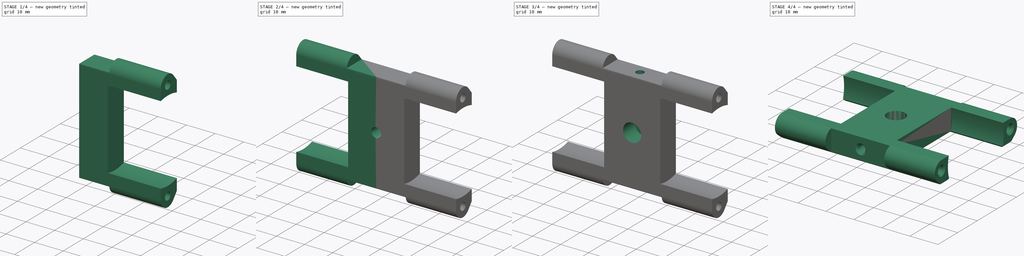
[diagram: build sequence overview — one tinted view per stage of 4, left to right]
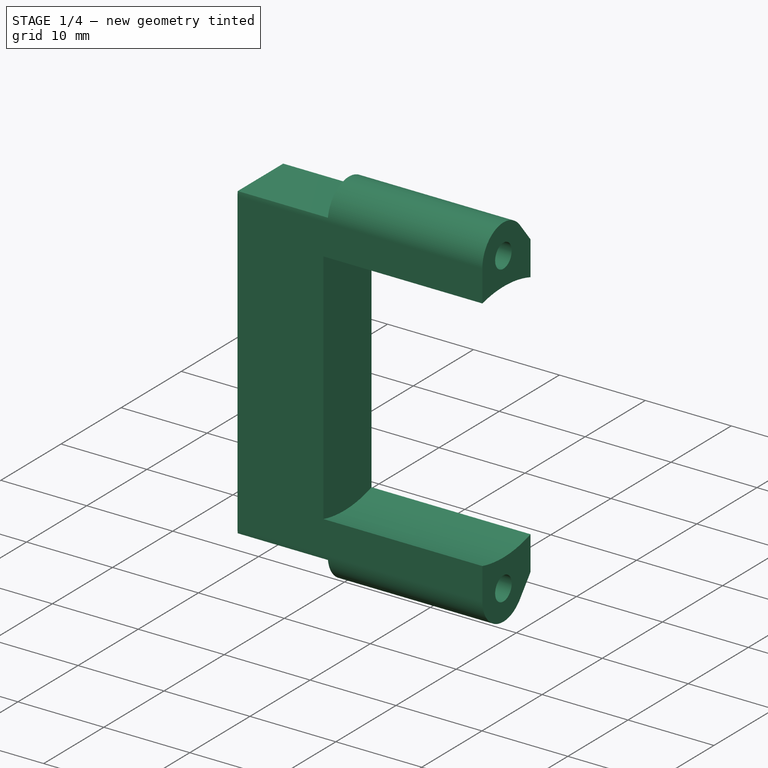
[diagram: stage 1 of 4 — iso view after this stage's code; geometry added in this stage tinted green]
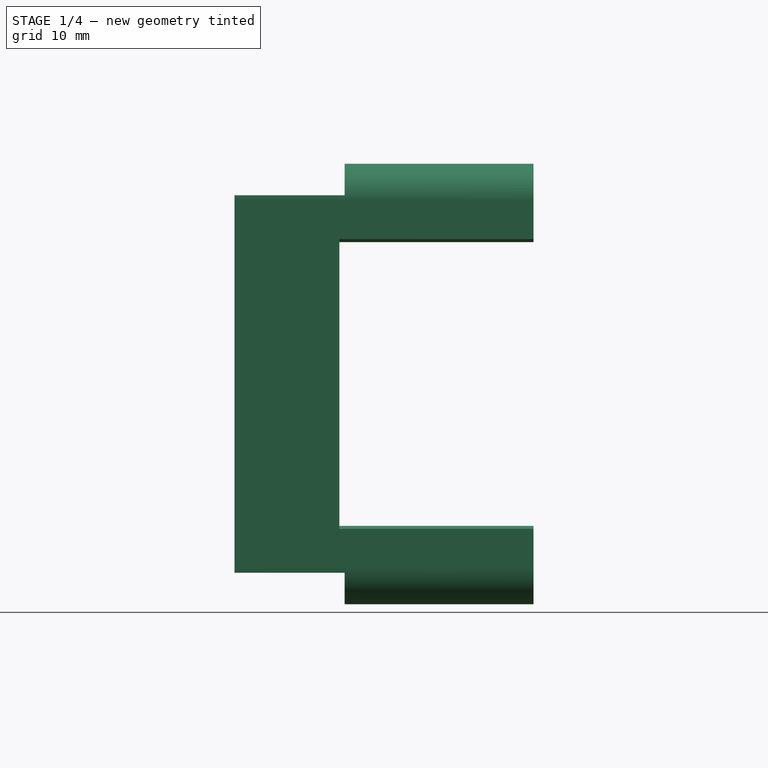
[diagram: stage 1 of 4 — front view after this stage's code; geometry added in this stage tinted green]
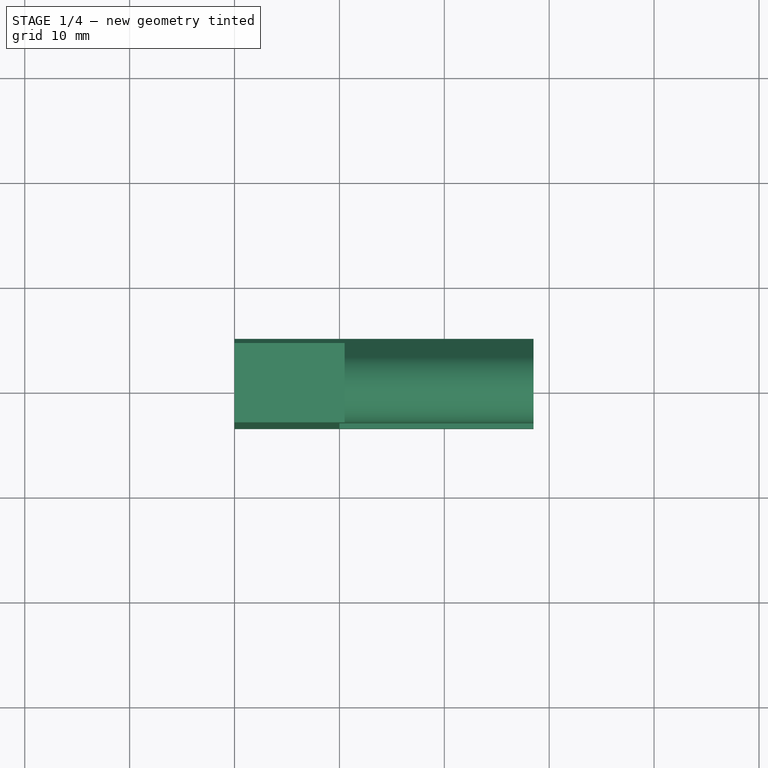
[diagram: stage 1 of 4 — top view after this stage's code; geometry added in this stage tinted green]
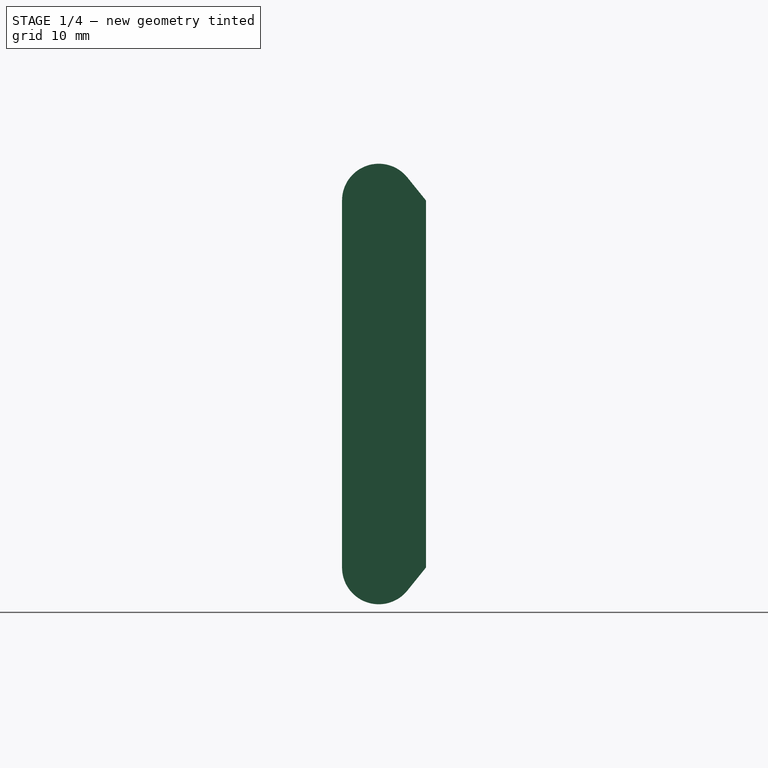
[diagram: stage 1 of 4 — right view after this stage's code; geometry added in this stage tinted green]
FCSTD DOCUMENT  (FreeCAD 0.14R3692 (Git))
Label: motor-bracket
License: The MIT License
LicenseURL: http://opensource.org/licenses/MIT
objects: Sketcher::SketchObject×8, PartDesign::Pocket×7, Part::FeaturePython×2, Part::Chamfer×2, Part::Feature×1, PartDesign::Pad×1, Part::Mirroring×1, Part::MultiFuse×1, App::DocumentObjectGroup×1
note: 31 computed .brp shape members not serialized (recipe doc carries the construction recipe); baked Part::Feature solids carry a one-line shape summary decoded from their .brp

FEATURE [Part::Feature] Part__Feature  label="stepper-motor"
  Placement = pos=(19.925,0,0) rot=(0.57735,0.57735,0.57735;2.0944rad)
  shape: bbox 28.55 x 44.13 x 42 mm, 425 faces (baked)
FEATURE [Sketcher::SketchObject] Sketch  label="bracket-sketch"
  Placement = pos=(0,0,0) rot=(0.57735,0.57735,0.57735;2.0944rad)
  sketch-geometry (6):
    g0: ArcOfCircle CenterX=0 CenterY=17.5 CenterZ=0 NormalX=0 NormalY=0 NormalZ=1 Radius=3.5 StartAngle=0.679674 EndAngle=3.14159
    g1: ArcOfCircle CenterX=0 CenterY=-17.5 CenterZ=0 NormalX=0 NormalY=0 NormalZ=1 Radius=3.5 StartAngle=3.14159 EndAngle=5.60352
    g2: LineSegment StartX=-3.5 StartY=17.5 StartZ=0 EndX=-3.5 EndY=-17.5 EndZ=0
    g3: LineSegment StartX=4.5 StartY=17.5 StartZ=0 EndX=4.5 EndY=-17.5 EndZ=0
    g4: LineSegment StartX=4.5 StartY=17.5 StartZ=0 EndX=2.72222 EndY=19.6999 EndZ=0
    g5: LineSegment StartX=2.72223 StartY=-19.6999 StartZ=0 EndX=4.5 EndY=-17.5 EndZ=0
  constraints (19):
    c: Tangent(g0,g2)
    c: Tangent(g1,g2)
    c: Coincident(g0,g2)
    c: Coincident(g2,g1)
    c: Vertical(g2)
    c: Radius(g1) = 3.5
    c: PointOnObject(g1,g-2)
    c: DistanceY(g0,g1) = -35
    c: Symmetric(g1,g0,g-1)
    c: Vertical(g3)
    c: Coincident(g3,g4)
    c: Coincident(g0,g4)
    c: Tangent(g0,g4)
    c: DistanceX(g3,g1) = -8
    c: DistanceY(g3) = -35
    c: Symmetric(g3,g3,g-1)
    c: Coincident(g5,g1)
    c: Coincident(g5,g3)
    c: Tangent(g1,g5)
FEATURE [PartDesign::Pad] Pad  label="bracket-pad"
  Length = 28.5
  Length2 = 100
  Placement = pos=(0,0,0) rot=(0.57735,0.57735,0.57735;2.0944rad)
  Sketch = -> Sketch
  Type = 0
FEATURE [Sketcher::SketchObject] Sketch001  label="motor-sketch"
  Placement = pos=(28.5,0,0) rot=(0.57735,0.57735,0.57735;2.0944rad)
  Support = -> Pad [Face8]
  sketch-geometry (1):
    g0: Circle CenterX=0 CenterY=0 CenterZ=0 NormalX=0 NormalY=0 NormalZ=1 Radius=14.25
  constraints (2):
    c: Coincident(g0,g-1)
    c: Radius(g0) = 14.25
FEATURE [PartDesign::Pocket] Pocket  label="motor-pocket"
  Length = 18.5
  Placement = pos=(0,0,0) rot=(0.57735,0.57735,0.57735;2.0944rad)
  Sketch = -> Sketch001
  Type = 0
FEATURE [Sketcher::SketchObject] Sketch002  label="motor-screw-holes-sketch"
  Placement = pos=(28.5,0,0) rot=(0.57735,0.57735,0.57735;2.0944rad)
  Support = -> Pocket [Face9]
  sketch-geometry (2):
    g0: Circle CenterX=0 CenterY=-17.5 CenterZ=0 NormalX=0 NormalY=0 NormalZ=1 Radius=1.375
    g1: Circle CenterX=0 CenterY=17.5 CenterZ=0 NormalX=0 NormalY=0 NormalZ=1 Radius=1.375
  constraints (6):
    c: PointOnObject(g0,g-2)
    c: DistanceY(g-1,g0) = -17.5
    c: Radius(g0) = 1.375
    c: PointOnObject(g1,g-2)
    c: DistanceY(g-1,g1) = 17.5
    c: Radius(g1) = 1.375
FEATURE [PartDesign::Pocket] Pocket001  label="motor-screw-holes-pocket"
  Length = 12
  Placement = pos=(0,0,0) rot=(0.57735,0.57735,0.57735;2.0944rad)
  Sketch = -> Sketch002
  Type = 0
FEATURE [Sketcher::SketchObject] Sketch003  label="recess-sketch"
  Placement = pos=(0,-3.5,0) rot=(-0.57735,-0.57735,0.57735;4.18879rad)
  Support = -> Pocket001 [Face13]
  sketch-geometry (8):
    g0: LineSegment StartX=-22 StartY=10.5 StartZ=0 EndX=-18 EndY=10.5 EndZ=0
    g1: LineSegment StartX=-18 StartY=10.5 StartZ=0 EndX=-18 EndY=0 EndZ=0
    g2: LineSegment StartX=-18 StartY=0 StartZ=0 EndX=-22 EndY=0 EndZ=0
    g3: LineSegment StartX=-22 StartY=0 StartZ=0 EndX=-22 EndY=10.5 EndZ=0
    g4: LineSegment StartX=18 StartY=10.5 StartZ=0 EndX=22 EndY=10.5 EndZ=0
    g5: LineSegment StartX=22 StartY=10.5 StartZ=0 EndX=22 EndY=0 EndZ=0
    g6: LineSegment StartX=22 StartY=0 StartZ=0 EndX=18 EndY=0 EndZ=0
    g7: LineSegment StartX=18 StartY=0 StartZ=0 EndX=18 EndY=10.5 EndZ=0
  constraints (24):
    c: Coincident(g0,g1)
    c: Coincident(g1,g2)
    c: Coincident(g2,g3)
    c: Coincident(g3,g0)
    c: Horizontal(g0)
    c: Horizontal(g2)
    c: Vertical(g1)
    c: Vertical(g3)
    c: PointOnObject(g1,g-1)
    c: DistanceX(g-1,g1) = -18
    c: DistanceX(g2) = -4
    c: DistanceY(g1) = -10.5
    c: Coincident(g4,g5)
    c: Coincident(g5,g6)
    c: Coincident(g6,g7)
    c: Coincident(g7,g4)
    c: Horizontal(g4)
    c: Horizontal(g6)
    c: Vertical(g5)
    c: Vertical(g7)
    c: PointOnObject(g6,g-1)
    c: DistanceY(g7) = 10.5
    c: DistanceX(g6) = -4
    c: DistanceX(g-1,g6) = 18
FEATURE [PartDesign::Pocket] Pocket002  label="recess-pocket"
  Length = 8
  Placement = pos=(0,0,0) rot=(0.57735,0.57735,0.57735;2.0944rad)
  Sketch = -> Sketch003
  Type = 0
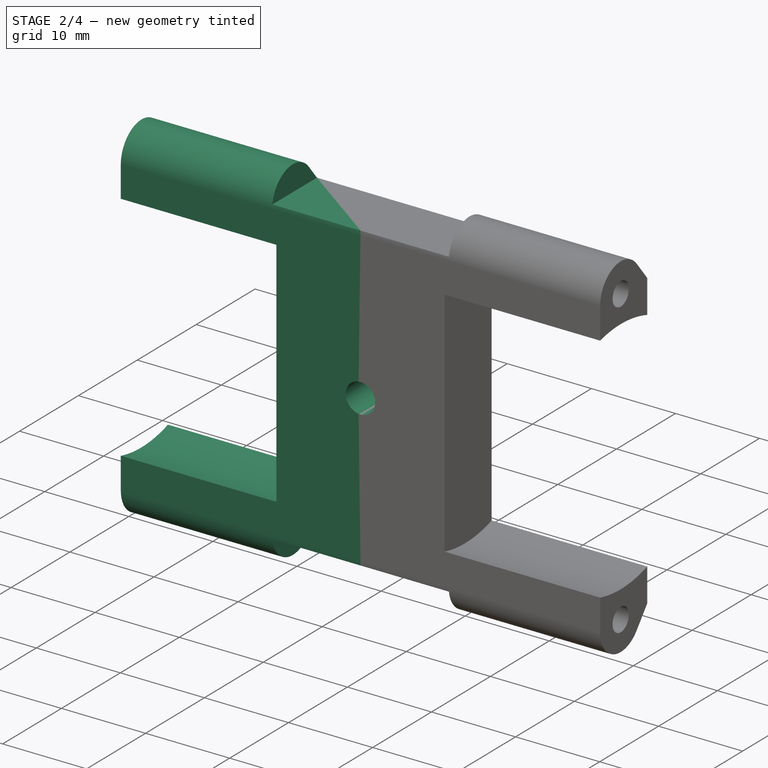
[diagram: stage 2 of 4 — iso view after this stage's code; geometry added in this stage tinted green]
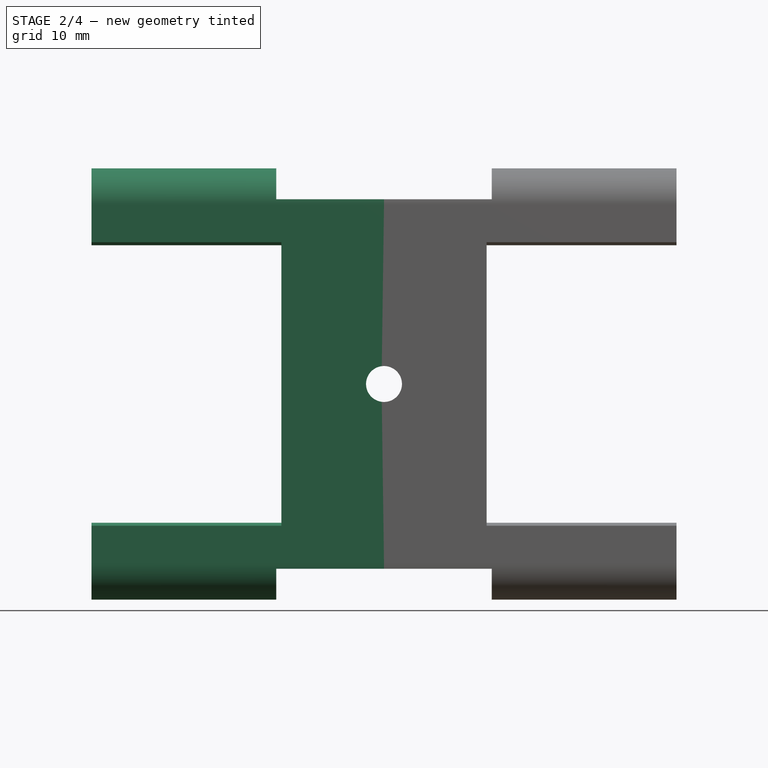
[diagram: stage 2 of 4 — front view after this stage's code; geometry added in this stage tinted green]
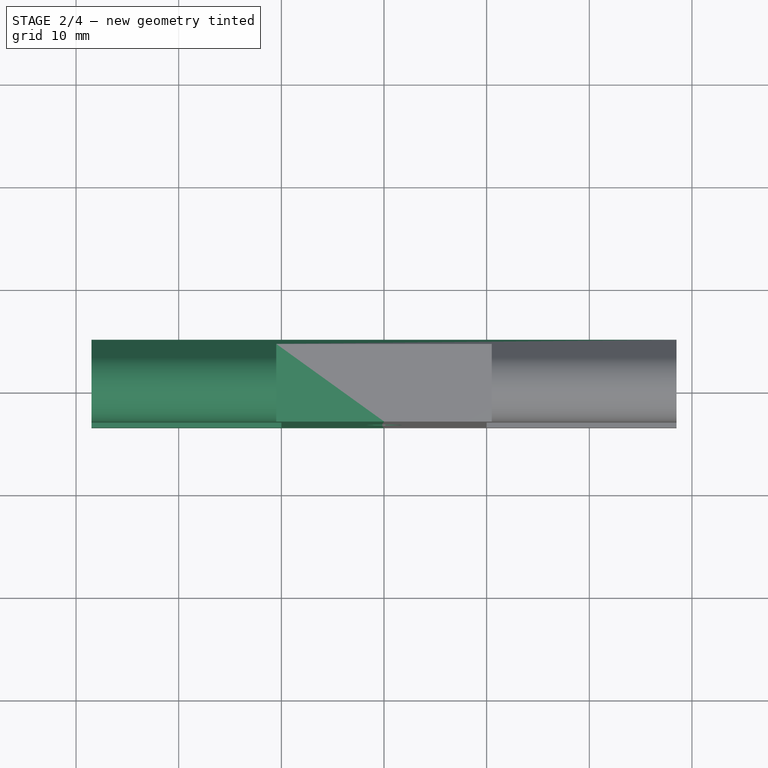
[diagram: stage 2 of 4 — top view after this stage's code; geometry added in this stage tinted green]
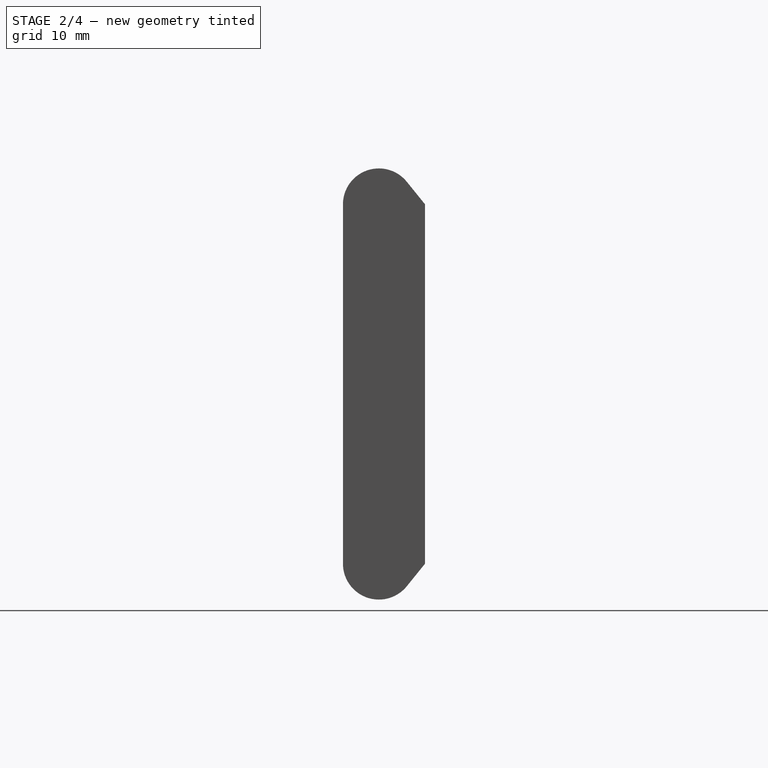
[diagram: stage 2 of 4 — right view after this stage's code; geometry added in this stage tinted green]
FEATURE [Part::Mirroring] Part__Mirroring  label="recess-pocket-mirror"
  Base = (0,0,0)
  Normal = (1,0,0)
  Source = -> Pocket002
FEATURE [Part::MultiFuse] Fusion  label="bracket-fusion"
  Shapes = -> [Part__Mirroring,Pocket002]
FEATURE [Sketcher::SketchObject] Sketch004  label="center-screw-hole-sketch"
  Placement = pos=(0,-3.5,0) rot=(1,0,0;1.5708rad)
  Support = -> Fusion [Face28]
  sketch-geometry (1):
    g0: Circle CenterX=0 CenterY=0 CenterZ=0 NormalX=0 NormalY=0 NormalZ=1 Radius=1.75
  constraints (2):
    c: Coincident(g0,g-1)
    c: Radius(g0) = 1.75
FEATURE [PartDesign::Pocket] Pocket003  label="center-screw-hole-pocket"
  Length = 8
  Sketch = -> Sketch004
  Type = 0
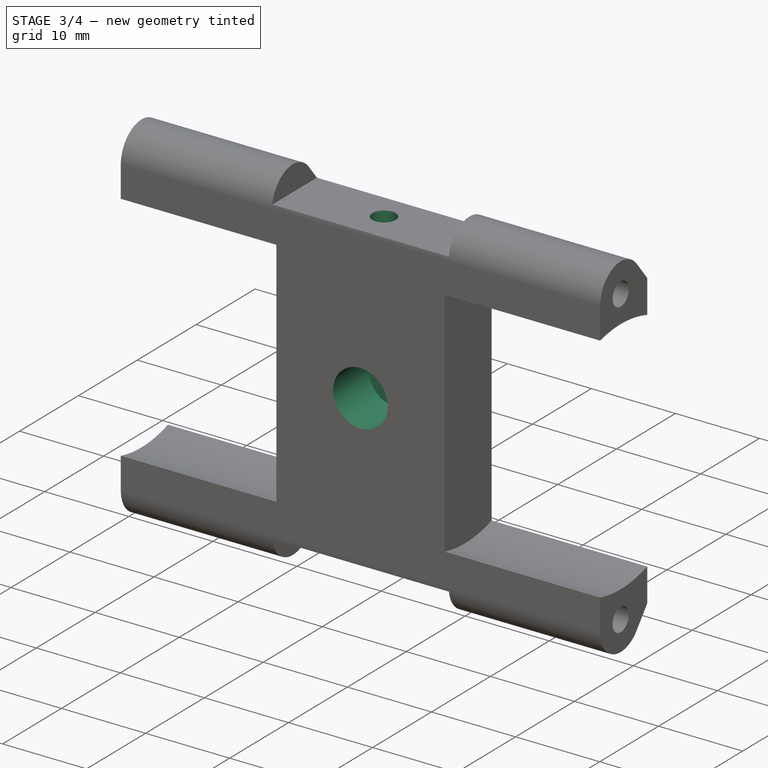
[diagram: stage 3 of 4 — iso view after this stage's code; geometry added in this stage tinted green]
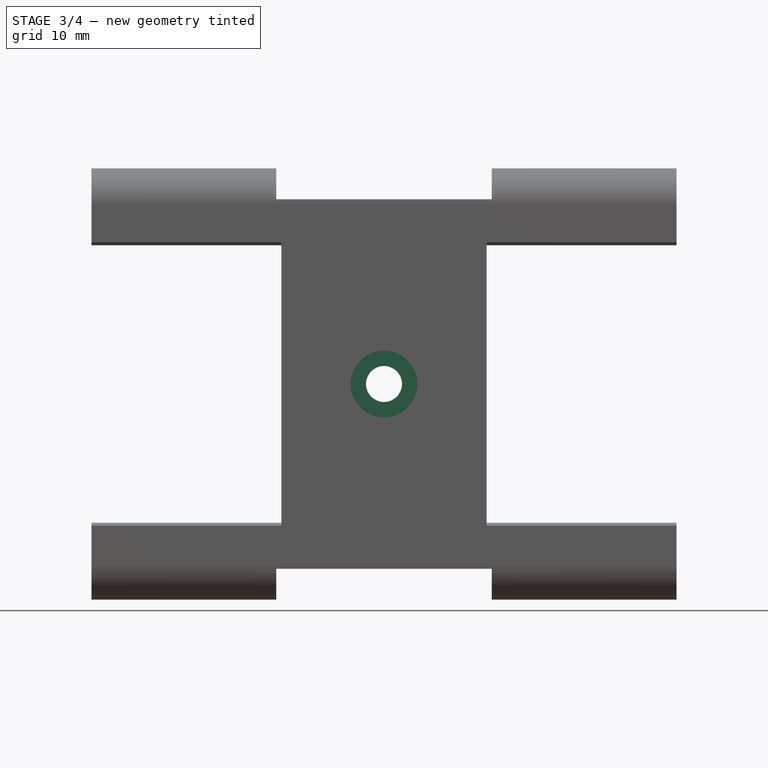
[diagram: stage 3 of 4 — front view after this stage's code; geometry added in this stage tinted green]
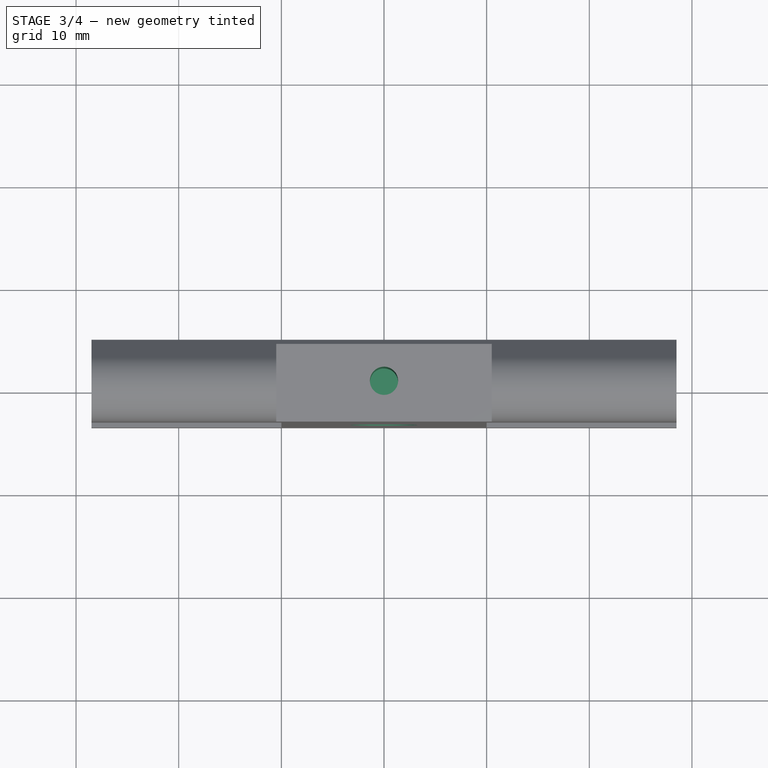
[diagram: stage 3 of 4 — top view after this stage's code; geometry added in this stage tinted green]
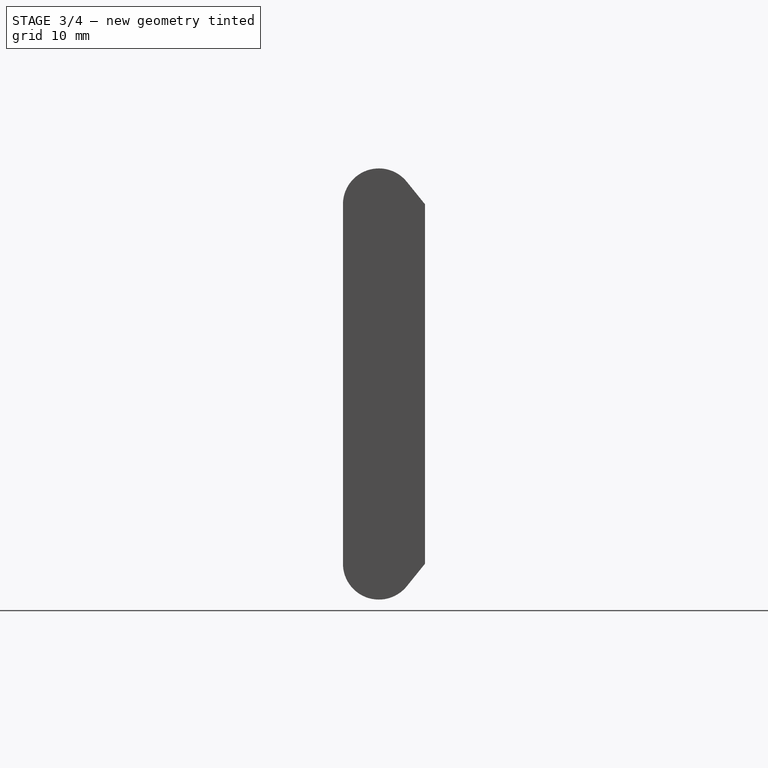
[diagram: stage 3 of 4 — right view after this stage's code; geometry added in this stage tinted green]
FEATURE [Sketcher::SketchObject] Sketch005  label="center-screw-head-hole-sketch"
  Placement = pos=(0,-3.5,0) rot=(1,0,0;1.5708rad)
  Support = -> Pocket003 [Face5]
  sketch-geometry (1):
    g0: Circle CenterX=0 CenterY=0 CenterZ=0 NormalX=0 NormalY=0 NormalZ=1 Radius=3.25
  constraints (2):
    c: Coincident(g0,g-1)
    c: Radius(g0) = 3.25
FEATURE [PartDesign::Pocket] Pocket004  label="center-screw-head-hole-pocket"
  Length = 6
  Sketch = -> Sketch005
  Type = 0
FEATURE [Sketcher::SketchObject] Sketch006  label="top-screw-hole-sketch"
  Placement = pos=(0,0,18) rot=(0,0,1;0rad)
  Support = -> Pocket004 [Face28]
  sketch-geometry (1):
    g0: Circle CenterX=0 CenterY=0.5 CenterZ=0 NormalX=0 NormalY=0 NormalZ=1 Radius=1.375
  constraints (3):
    c: PointOnObject(g0,g-2)
    c: DistanceY(g-1,g0) = 0.5
    c: Radius(g0) = 1.375
FEATURE [PartDesign::Pocket] Pocket005  label="top-screw-hole-pocket"
  Length = 10
  Sketch = -> Sketch006
  Type = 0
FEATURE [Sketcher::SketchObject] Sketch007  label="bottom-screw-hole-sketch"
  Placement = pos=(0,0,-18) rot=(1,0,0;3.14159rad)
  Support = -> Pocket005 [Face26]
  sketch-geometry (1):
    g0: Circle CenterX=0 CenterY=-0.5 CenterZ=0 NormalX=0 NormalY=0 NormalZ=1 Radius=1.375
  constraints (3):
    c: PointOnObject(g0,g-2)
    c: DistanceY(g-1,g0) = -0.5
    c: Radius(g0) = 1.375
FEATURE [PartDesign::Pocket] Pocket006  label="bottom-screw-hole-pocket"
  Length = 10
  Sketch = -> Sketch007
  Type = 0
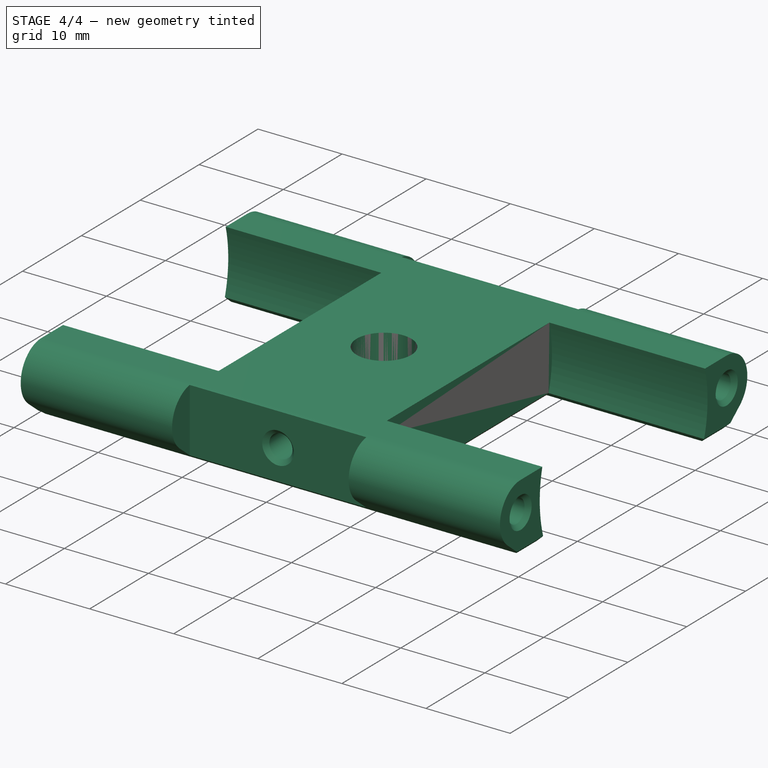
[diagram: stage 4 of 4 — iso view after this stage's code; geometry added in this stage tinted green]
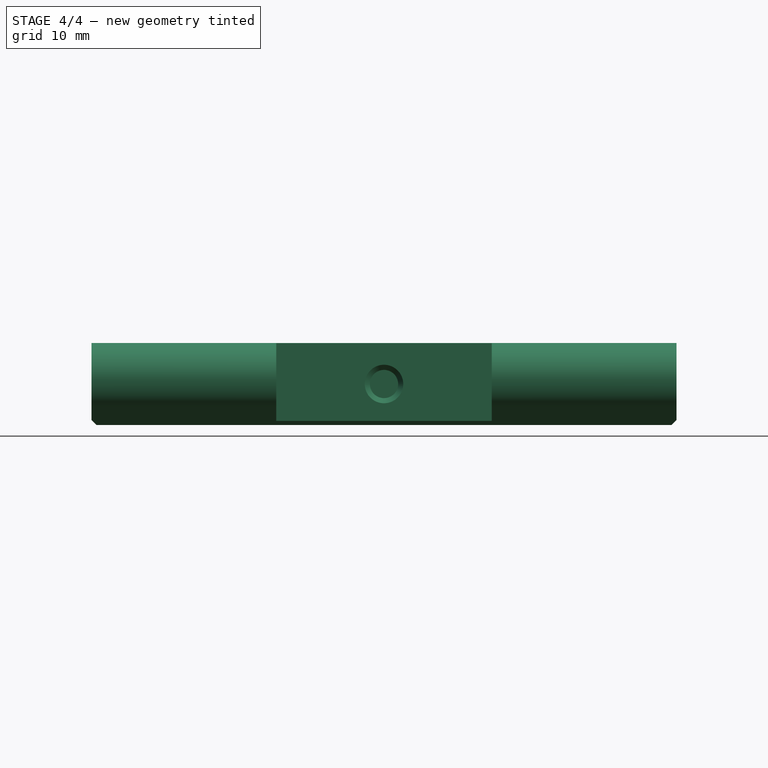
[diagram: stage 4 of 4 — front view after this stage's code; geometry added in this stage tinted green]
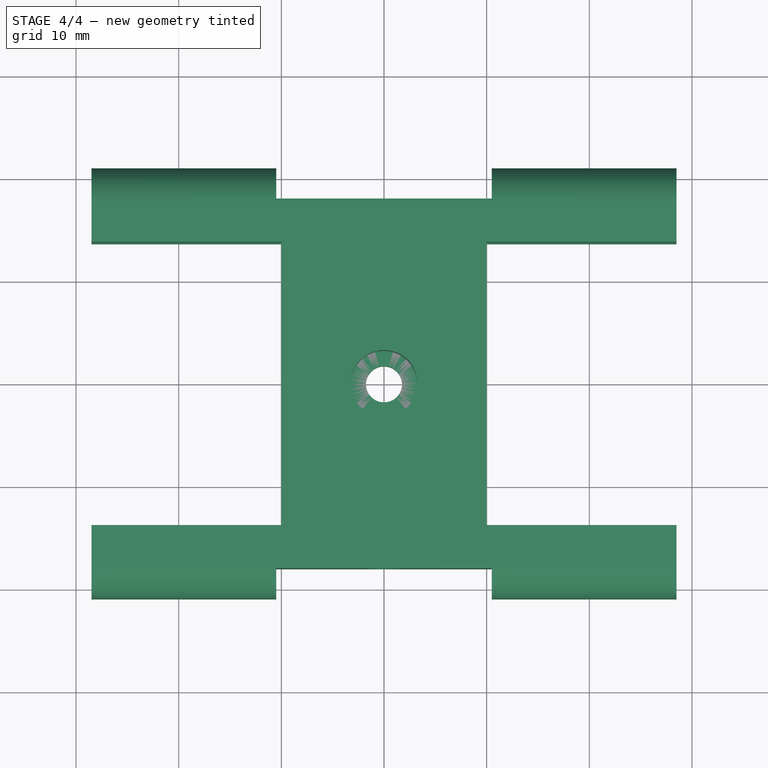
[diagram: stage 4 of 4 — top view after this stage's code; geometry added in this stage tinted green]
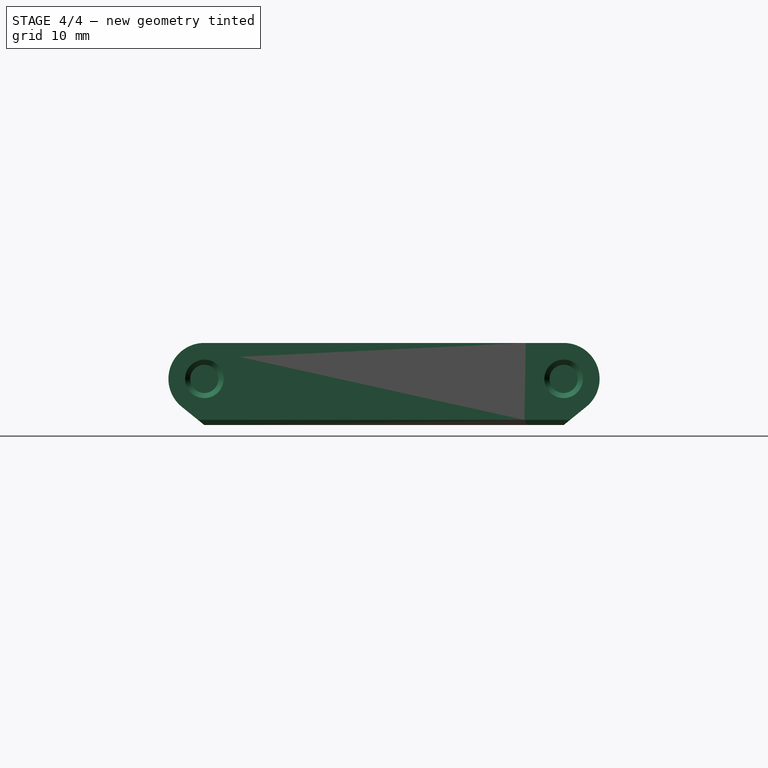
[diagram: stage 4 of 4 — right view after this stage's code; geometry added in this stage tinted green]
FEATURE [Part::FeaturePython] Clone  label="motor-bracket"  # Draft clone (typed FeaturePython)
  Objects = -> [Pocket006]
  Scale = (1,1,1)
FEATURE [Part::Chamfer] Chamfer  label="screw-chamfer"
  Base = -> Clone
  Edges = 6 edges r=0.5: [Edge35,Edge42,Edge45,Edge58,Edge82,Edge85]
FEATURE [Part::Chamfer] Chamfer001  label="printing-chamfer"
  Base = -> Chamfer
  Edges = 11 edges r=0.5: [Edge4,Edge10,Edge25,Edge26,Edge27,Edge28,Edge29,Edge32,Edge33,Edge34,Edge35]
FEATURE [Part::FeaturePython] Clone001  label="motor-bracket (printing)"  # Draft clone (typed FeaturePython)
  Objects = -> [Chamfer001]
  Placement = pos=(0,0,0) rot=(-1,0,0;1.5708rad)
  Scale = (1,1,1)
FEATURE [App::DocumentObjectGroup] Group  label="components"
  Group = -> [Part__Feature]
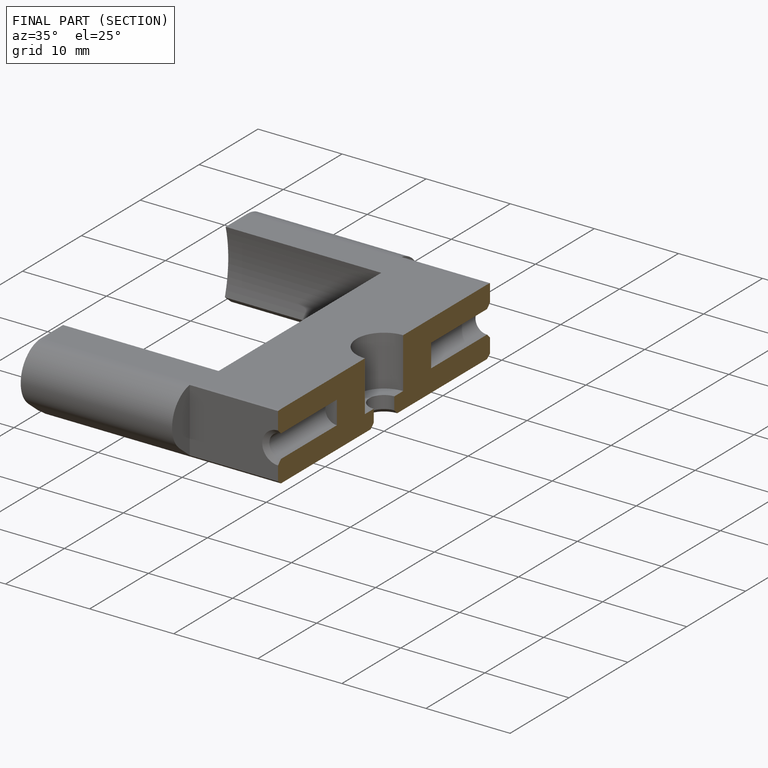
[diagram: finished part — half-section view (interior)]
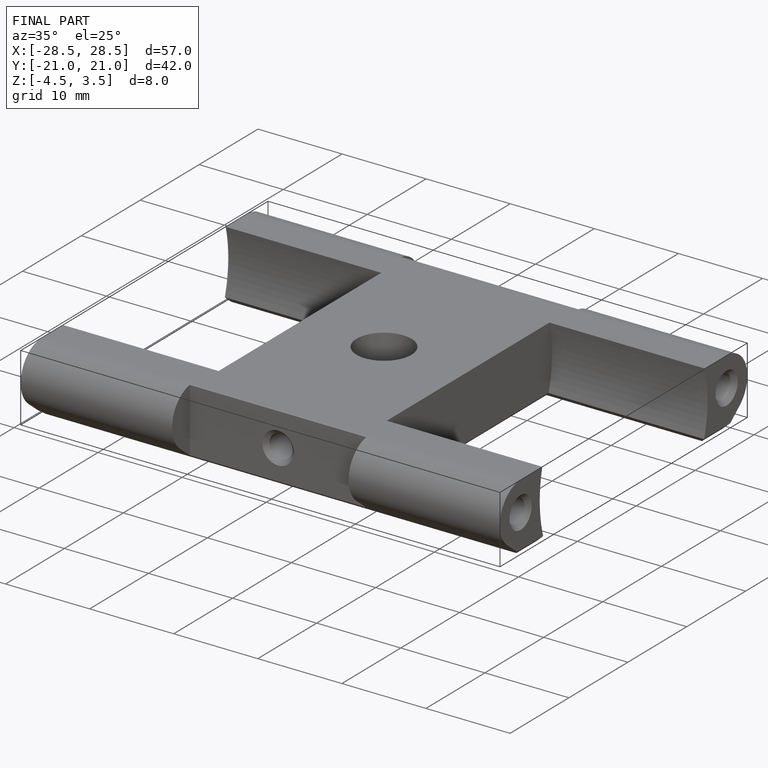
[diagram: finished part — iso view with bounding-box wireframe]
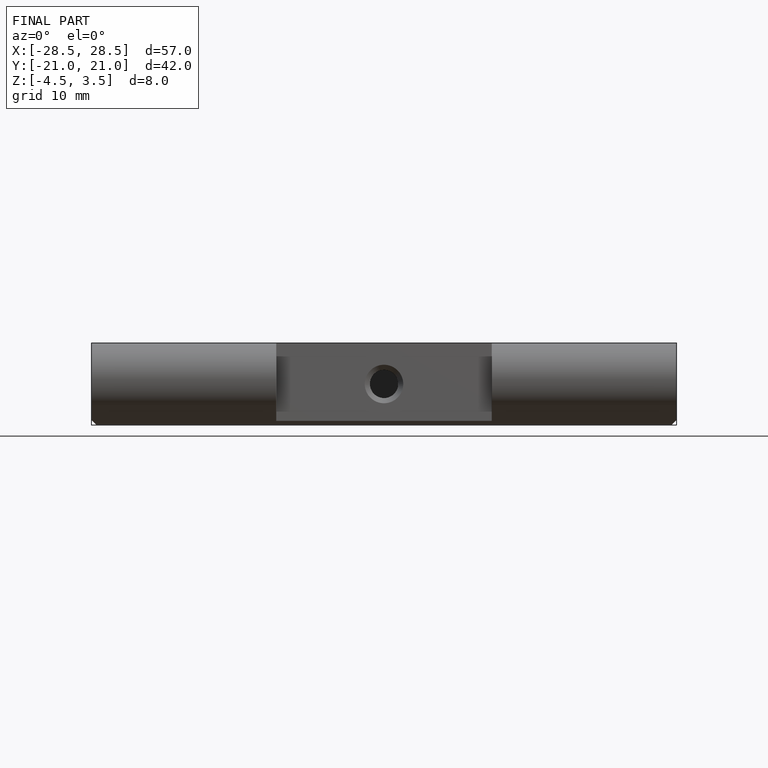
[diagram: finished part — front view with bounding-box wireframe]
